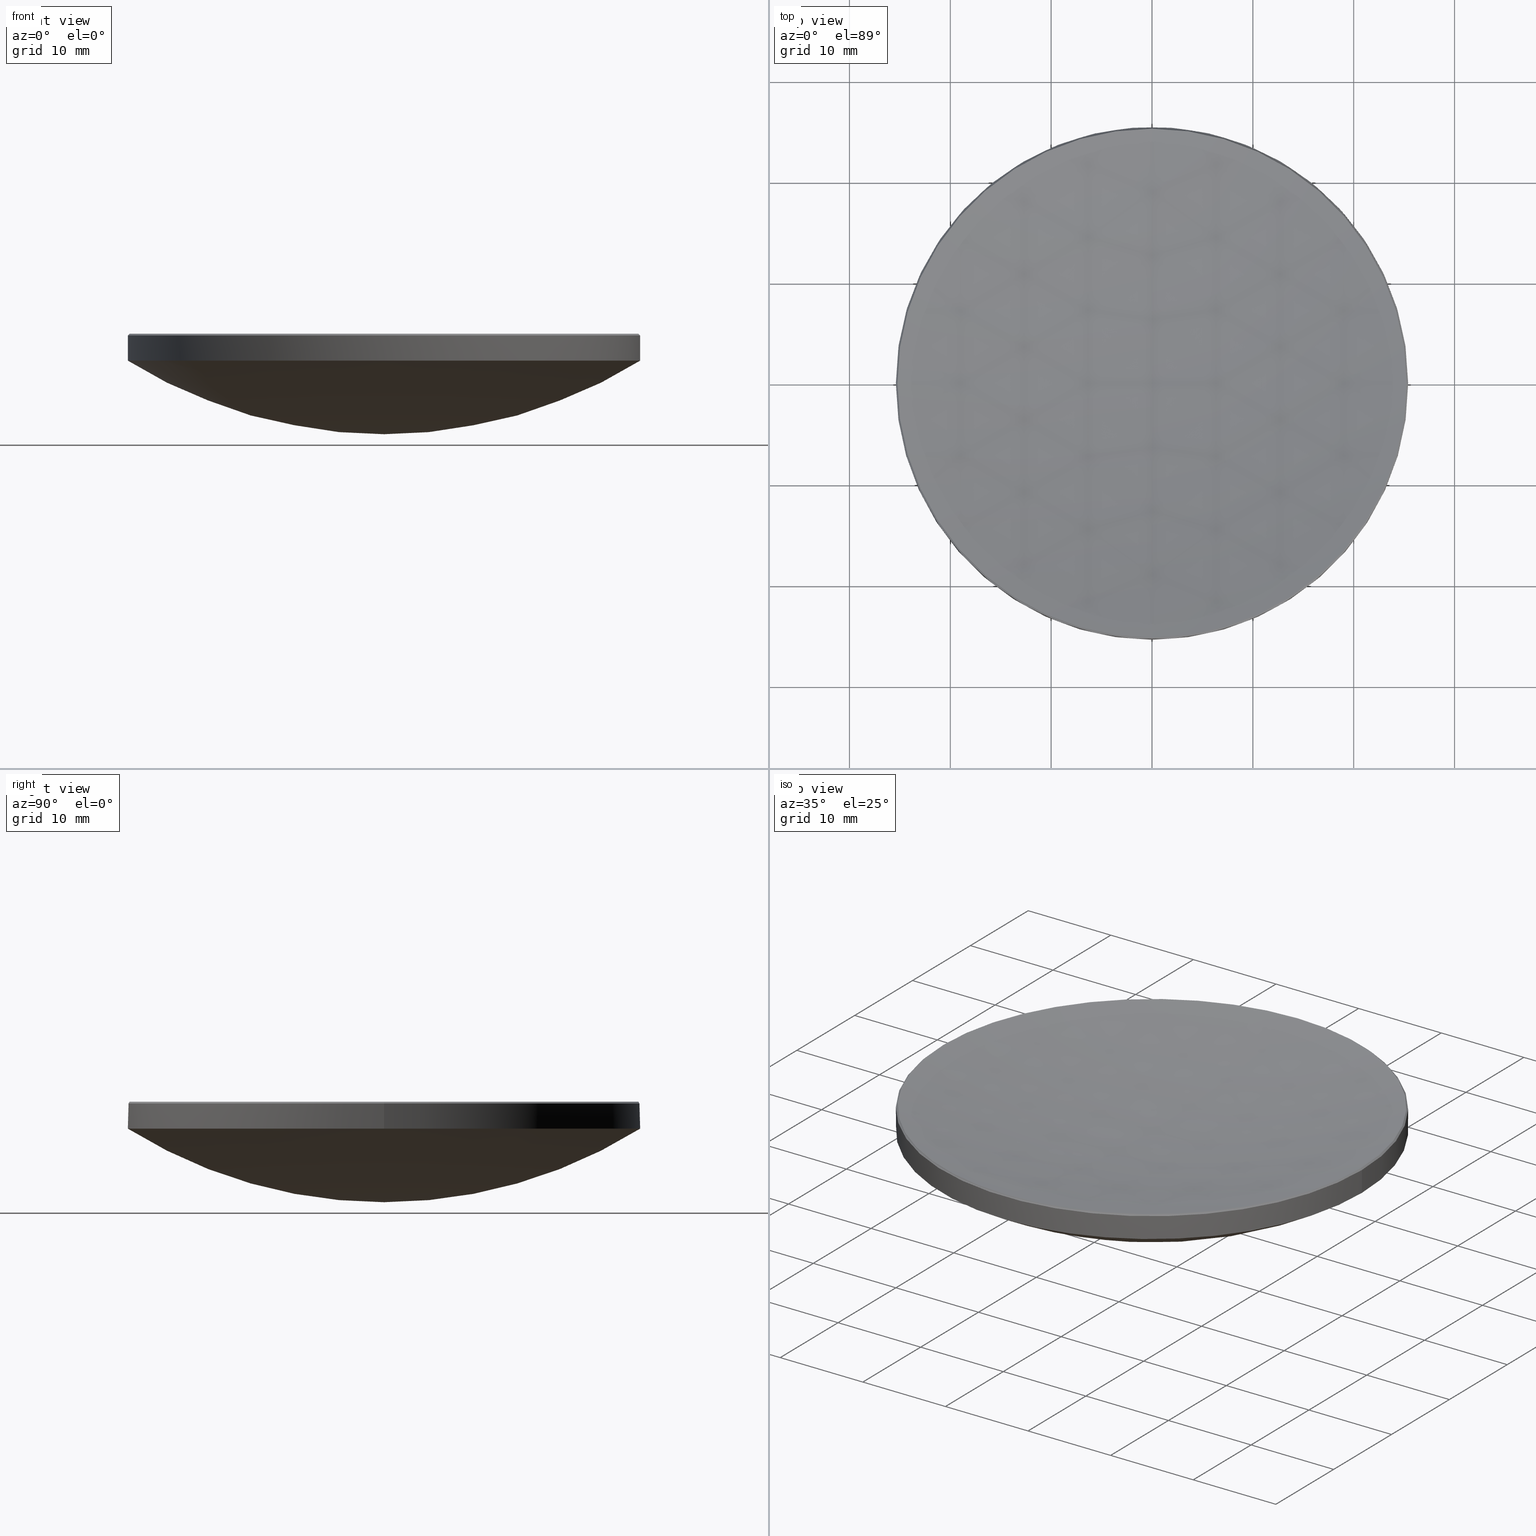
[diagram: canonical four-view strip — front | top / right | iso, engineering-drawing reading convention]
A machine part, canonical four-view strip (front | top / right | iso — engineering-drawing reading convention). The complete STEP part file that produces these views, byte-faithful:
ISO-10303-21;
HEADER;
FILE_DESCRIPTION (( 'STEP AP214' ),
    '1' );
FILE_NAME ('GLM1-050B-150-NIR.STEP',
    '2024-08-09T02:23:32',
    ( 'Windows User' ),
    ( 'P R C' ),
    'SwSTEP 2.0',
    'SolidWorks 2022',
    '' );
FILE_SCHEMA (( 'AUTOMOTIVE_DESIGN' ));
ENDSEC;

DATA;
#1 = PRODUCT_RELATED_PRODUCT_CATEGORY ( 'part', '', ( #240 ) ) ;
#2 = CONICAL_SURFACE ( 'NONE', #35, 25.23567881563414872, 0.7853981633974062015 ) ;
#3 = EDGE_CURVE ( 'NONE', #159, #162, #164, .T. ) ;
#4 = VERTEX_POINT ( 'NONE', #271 ) ;
#5 = ORIENTED_EDGE ( 'NONE', *, *, #136, .F. ) ;
#6 = DIRECTION ( 'NONE',  ( -1.224646799147353207E-16, -1.000000000000000000, 0.000000000000000000 ) ) ;
#7 = CARTESIAN_POINT ( 'NONE',  ( 0.000000000000000000, 0.000000000000000000, 15.49999999999997158 ) ) ;
#8 = ORIENTED_EDGE ( 'NONE', *, *, #85, .T. ) ;
#9 = SPHERICAL_SURFACE ( 'NONE', #123, 47.86999999999999744 ) ;
#10 = CIRCLE ( 'NONE', #205, 25.23567881563414517 ) ;
#11 = ORIENTED_EDGE ( 'NONE', *, *, #257, .T. ) ;
#12 = DIRECTION ( 'NONE',  ( -0.000000000000000000, -0.000000000000000000, 1.000000000000000000 ) ) ;
#13 = SURFACE_STYLE_FILL_AREA ( #101 ) ;
#14 = CIRCLE ( 'NONE', #282, 25.39999999999999858 ) ;
#15 = FILL_AREA_STYLE ('',( #109 ) ) ;
#16 = EDGE_CURVE ( 'NONE', #70, #272, #153, .T. ) ;
#17 = SURFACE_SIDE_STYLE ('',( #213 ) ) ;
#18 = APPLICATION_PROTOCOL_DEFINITION ( 'draft international standard', 'automotive_design', 1998, #256 ) ;
#19 = CARTESIAN_POINT ( 'NONE',  ( 0.000000000000000000, 0.000000000000000000, 20.00000000000000000 ) ) ;
#20 = CIRCLE ( 'NONE', #178, 47.86999999999999744 ) ;
#21 = CARTESIAN_POINT ( 'NONE',  ( 25.39999999999999503, 3.110602869834276471E-15, 13.00000000000000000 ) ) ;
#22 = DIRECTION ( 'NONE',  ( 1.000000000000000000, 0.000000000000000000, 0.000000000000000000 ) ) ;
#23 = AXIS2_PLACEMENT_3D ( 'NONE', #197, #134, #281 ) ;
#24 = EDGE_CURVE ( 'NONE', #4, #162, #217, .T. ) ;
#25 = MANIFOLD_SOLID_BREP ( '����1', #163 ) ;
#26 = ORIENTED_EDGE ( 'NONE', *, *, #221, .F. ) ;
#27 = EDGE_LOOP ( 'NONE', ( #32, #268, #200, #92 ) ) ;
#28 = DIRECTION ( 'NONE',  ( -1.000000000000000000, 1.224646799147353207E-16, 0.000000000000000000 ) ) ;
#29 = ORIENTED_EDGE ( 'NONE', *, *, #175, .T. ) ;
#30 = CARTESIAN_POINT ( 'NONE',  ( 0.000000000000000000, 0.000000000000000000, 53.57557023628872628 ) ) ;
#31 = DIRECTION ( 'NONE',  ( -0.000000000000000000, -0.000000000000000000, 1.000000000000000000 ) ) ;
#32 = ORIENTED_EDGE ( 'NONE', *, *, #237, .F. ) ;
#33 = DIRECTION ( 'NONE',  ( -1.224646799147353207E-16, -1.000000000000000000, 0.000000000000000000 ) ) ;
#34 = DIRECTION ( 'NONE',  ( 1.000000000000000000, 0.000000000000000000, 0.000000000000000000 ) ) ;
#35 = AXIS2_PLACEMENT_3D ( 'NONE', #37, #182, #203 ) ;
#36 = ORIENTED_EDGE ( 'NONE', *, *, #191, .F. ) ;
#37 = CARTESIAN_POINT ( 'NONE',  ( 0.000000000000000000, 0.000000000000000000, 15.66432118436583742 ) ) ;
#38 =( NAMED_UNIT ( * ) SI_UNIT ( $, .STERADIAN. ) SOLID_ANGLE_UNIT ( ) );
#39 = ADVANCED_FACE ( 'NONE', ( #108 ), #106, .T. ) ;
#40 = DIRECTION ( 'NONE',  ( 1.000000000000000000, 0.000000000000000000, 0.000000000000000000 ) ) ;
#41 = SURFACE_STYLE_USAGE ( .BOTH. , #17 ) ;
#42 = EDGE_CURVE ( 'NONE', #160, #138, #260, .T. ) ;
#43 = DIRECTION ( 'NONE',  ( 1.000000000000000000, 0.000000000000000000, 0.000000000000000000 ) ) ;
#44 = LINE ( 'NONE', #170, #230 ) ;
#45 = CIRCLE ( 'NONE', #147, 25.23567881563414517 ) ;
#46 = DIRECTION ( 'NONE',  ( 0.000000000000000000, 0.000000000000000000, -1.000000000000000000 ) ) ;
#47 = ADVANCED_FACE ( 'NONE', ( #207 ), #171, .T. ) ;
#48 = DIRECTION ( 'NONE',  ( -1.000000000000000000, 0.000000000000000000, 0.000000000000000000 ) ) ;
#49 = EDGE_CURVE ( 'NONE', #162, #4, #14, .T. ) ;
#50 = AXIS2_PLACEMENT_3D ( 'NONE', #7, #246, #209 ) ;
#51 = ORIENTED_EDGE ( 'NONE', *, *, #3, .T. ) ;
#52 = EDGE_LOOP ( 'NONE', ( #26, #116, #36, #5 ) ) ;
#53 =( NAMED_UNIT ( * ) PLANE_ANGLE_UNIT ( ) SI_UNIT ( $, .RADIAN. ) );
#54 = ORIENTED_EDGE ( 'NONE', *, *, #24, .T. ) ;
#55 = ORIENTED_EDGE ( 'NONE', *, *, #151, .T. ) ;
#56 = CARTESIAN_POINT ( 'NONE',  ( 0.000000000000000000, 0.000000000000000000, 13.00000000000000000 ) ) ;
#57 = ORIENTED_EDGE ( 'NONE', *, *, #191, .T. ) ;
#58 = PRODUCT_DEFINITION ( 'δ֪', '', #280, #261 ) ;
#59 = DIRECTION ( 'NONE',  ( 1.000000000000000000, 0.000000000000000000, 0.000000000000000000 ) ) ;
#60 = CARTESIAN_POINT ( 'NONE',  ( 0.000000000000000000, 0.000000000000000000, 13.00000000000000000 ) ) ;
#61 = DIRECTION ( 'NONE',  ( -0.000000000000000000, -0.000000000000000000, -1.000000000000000000 ) ) ;
#62 = FACE_OUTER_BOUND ( 'NONE', #229, .T. ) ;
#63 =( NAMED_UNIT ( * ) SI_UNIT ( $, .STERADIAN. ) SOLID_ANGLE_UNIT ( ) );
#64 = DIRECTION ( 'NONE',  ( -1.000000000000000000, 0.000000000000000000, 0.000000000000000000 ) ) ;
#65 = AXIS2_PLACEMENT_3D ( 'NONE', #192, #81, #148 ) ;
#66 = CARTESIAN_POINT ( 'NONE',  ( 0.000000000000000000, 7.306242803713110362E-15, 12.96517229905352941 ) ) ;
#67 = AXIS2_PLACEMENT_3D ( 'NONE', #144, #227, #33 ) ;
#68 = EDGE_CURVE ( 'NONE', #222, #202, #179, .T. ) ;
#69 = DIRECTION ( 'NONE',  ( -0.000000000000000000, -0.000000000000000000, 1.000000000000000000 ) ) ;
#70 = VERTEX_POINT ( 'NONE', #215 ) ;
#71 = ORIENTED_EDGE ( 'NONE', *, *, #236, .F. ) ;
#72 = DIRECTION ( 'NONE',  ( 1.000000000000000000, 0.000000000000000000, 0.000000000000000000 ) ) ;
#73 = ORIENTED_EDGE ( 'NONE', *, *, #137, .T. ) ;
#74 = DIRECTION ( 'NONE',  ( 0.000000000000000000, 1.000000000000000000, 0.000000000000000000 ) ) ;
#75 = LINE ( 'NONE', #117, #115 ) ;
#76 = PRESENTATION_LAYER_ASSIGNMENT (  '', '', ( #273 ) ) ;
#77 = ORIENTED_EDGE ( 'NONE', *, *, #151, .F. ) ;
#78 = SPHERICAL_SURFACE ( 'NONE', #242, 119.3200000000000074 ) ;
#79 = DIRECTION ( 'NONE',  ( -1.000000000000000000, 0.000000000000000000, 0.000000000000000000 ) ) ;
#80 =( GEOMETRIC_REPRESENTATION_CONTEXT ( 3 ) GLOBAL_UNCERTAINTY_ASSIGNED_CONTEXT ( ( #169 ) ) GLOBAL_UNIT_ASSIGNED_CONTEXT ( ( #143, #53, #139 ) ) REPRESENTATION_CONTEXT ( 'NONE', 'WORKASPACE' ) );
#81 = DIRECTION ( 'NONE',  ( -1.000000000000000000, 0.000000000000000000, 0.000000000000000000 ) ) ;
#82 = CIRCLE ( 'NONE', #278, 25.39999999999999503 ) ;
#83 = UNCERTAINTY_MEASURE_WITH_UNIT (LENGTH_MEASURE( 1.000000000000000082E-05 ), #120, 'distance_accuracy_value', 'NONE');
#84 = AXIS2_PLACEMENT_3D ( 'NONE', #56, #31, #34 ) ;
#85 = EDGE_CURVE ( 'NONE', #202, #138, #10, .T. ) ;
#86 = CARTESIAN_POINT ( 'NONE',  ( 0.000000000000000000, 0.000000000000000000, 15.66432118436585164 ) ) ;
#87 = PRESENTATION_LAYER_ASSIGNMENT (  '', '', ( #135 ) ) ;
#88 = CARTESIAN_POINT ( 'NONE',  ( -3.090479328587706859E-15, -25.23567881563418425, 15.66432118436585164 ) ) ;
#89 =( GEOMETRIC_REPRESENTATION_CONTEXT ( 3 ) GLOBAL_UNCERTAINTY_ASSIGNED_CONTEXT ( ( #83 ) ) GLOBAL_UNIT_ASSIGNED_CONTEXT ( ( #120, #166, #38 ) ) REPRESENTATION_CONTEXT ( 'NONE', 'WORKASPACE' ) );
#90 = LINE ( 'NONE', #111, #103 ) ;
#91 = ORIENTED_EDGE ( 'NONE', *, *, #68, .T. ) ;
#92 = ORIENTED_EDGE ( 'NONE', *, *, #16, .F. ) ;
#93 = FACE_OUTER_BOUND ( 'NONE', #188, .T. ) ;
#94 = VERTEX_POINT ( 'NONE', #21 ) ;
#95 = ADVANCED_FACE ( 'NONE', ( #62 ), #128, .F. ) ;
#96 = CARTESIAN_POINT ( 'NONE',  ( 0.000000000000000000, 0.000000000000000000, 15.66432118436585164 ) ) ;
#97 = PRESENTATION_STYLE_ASSIGNMENT (( #124 ) ) ;
#98 = ORIENTED_EDGE ( 'NONE', *, *, #175, .F. ) ;
#99 = DIRECTION ( 'NONE',  ( -0.000000000000000000, -0.000000000000000000, 1.000000000000000000 ) ) ;
#100 = AXIS2_PLACEMENT_3D ( 'NONE', #60, #232, #40 ) ;
#101 = FILL_AREA_STYLE ('',( #183 ) ) ;
#102 = AXIS2_PLACEMENT_3D ( 'NONE', #252, #127, #43 ) ;
#103 = VECTOR ( 'NONE', #177, 1000.000000000000114 ) ;
#104 = VERTEX_POINT ( 'NONE', #250 ) ;
#105 = CARTESIAN_POINT ( 'NONE',  ( 0.000000000000000000, 0.000000000000000000, 53.57557023628872628 ) ) ;
#106 = CYLINDRICAL_SURFACE ( 'NONE', #199, 25.39999999999999858 ) ;
#107 = DIRECTION ( 'NONE',  ( -0.000000000000000000, -0.000000000000000000, 1.000000000000000000 ) ) ;
#108 = FACE_OUTER_BOUND ( 'NONE', #264, .T. ) ;
#109 = FILL_AREA_STYLE_COLOUR ( '', #233 ) ;
#110 = AXIS2_PLACEMENT_3D ( 'NONE', #187, #107, #59 ) ;
#111 = CARTESIAN_POINT ( 'NONE',  ( -25.23567881563414872, 0.000000000000000000, 15.66432118436583742 ) ) ;
#112 = VECTOR ( 'NONE', #145, 1000.000000000000114 ) ;
#113 = EDGE_CURVE ( 'NONE', #272, #104, #216, .T. ) ;
#114 = ORIENTED_EDGE ( 'NONE', *, *, #265, .F. ) ;
#115 = VECTOR ( 'NONE', #231, 1000.000000000000000 ) ;
#116 = ORIENTED_EDGE ( 'NONE', *, *, #237, .T. ) ;
#117 = CARTESIAN_POINT ( 'NONE',  ( 25.39999999999999858, 3.110602869834276865E-15, 20.00000000000000000 ) ) ;
#118 = ORIENTED_EDGE ( 'NONE', *, *, #236, .T. ) ;
#119 = DIRECTION ( 'NONE',  ( 0.000000000000000000, 0.000000000000000000, -1.000000000000000000 ) ) ;
#120 =( LENGTH_UNIT ( ) NAMED_UNIT ( * ) SI_UNIT ( .MILLI., .METRE. ) );
#121 = VERTEX_POINT ( 'NONE', #126 ) ;
#122 = DIRECTION ( 'NONE',  ( -1.000000000000000000, 0.000000000000000000, 0.000000000000000000 ) ) ;
#123 = AXIS2_PLACEMENT_3D ( 'NONE', #249, #122, #161 ) ;
#124 = SURFACE_STYLE_USAGE ( .BOTH. , #228 ) ;
#125 = CARTESIAN_POINT ( 'NONE',  ( -25.39999999999999503, 0.000000000000000000, 13.00000000000000000 ) ) ;
#126 = CARTESIAN_POINT ( 'NONE',  ( 0.000000000000000000, 2.931192113759189857E-15, 5.705570236288731500 ) ) ;
#127 = DIRECTION ( 'NONE',  ( 0.000000000000000000, 0.000000000000000000, 1.000000000000000000 ) ) ;
#128 = SPHERICAL_SURFACE ( 'NONE', #65, 119.3200000000000074 ) ;
#129 =( GEOMETRIC_REPRESENTATION_CONTEXT ( 3 ) GLOBAL_UNCERTAINTY_ASSIGNED_CONTEXT ( ( #168 ) ) GLOBAL_UNIT_ASSIGNED_CONTEXT ( ( #276, #254, #63 ) ) REPRESENTATION_CONTEXT ( 'NONE', 'WORKASPACE' ) );
#130 = AXIS2_PLACEMENT_3D ( 'NONE', #262, #46, #48 ) ;
#131 = AXIS2_PLACEMENT_3D ( 'NONE', #105, #190, #74 ) ;
#132 = DIRECTION ( 'NONE',  ( 1.000000000000000000, 0.000000000000000000, 0.000000000000000000 ) ) ;
#133 = DIRECTION ( 'NONE',  ( 1.000000000000000000, 0.000000000000000000, 0.000000000000000000 ) ) ;
#134 = DIRECTION ( 'NONE',  ( 1.000000000000000000, 0.000000000000000000, 0.000000000000000000 ) ) ;
#135 = STYLED_ITEM ( 'NONE', ( #149 ), #173 ) ;
#136 = EDGE_CURVE ( 'NONE', #104, #94, #82, .T. ) ;
#137 = EDGE_CURVE ( 'NONE', #160, #222, #196, .T. ) ;
#138 = VERTEX_POINT ( 'NONE', #88 ) ;
#139 =( NAMED_UNIT ( * ) SI_UNIT ( $, .STERADIAN. ) SOLID_ANGLE_UNIT ( ) );
#140 = ORIENTED_EDGE ( 'NONE', *, *, #3, .F. ) ;
#141 = FACE_OUTER_BOUND ( 'NONE', #247, .T. ) ;
#142 = ORIENTED_EDGE ( 'NONE', *, *, #257, .F. ) ;
#143 =( LENGTH_UNIT ( ) NAMED_UNIT ( * ) SI_UNIT ( .MILLI., .METRE. ) );
#144 = CARTESIAN_POINT ( 'NONE',  ( 0.000000000000000000, 0.000000000000000000, 132.2851722990535279 ) ) ;
#145 = DIRECTION ( 'NONE',  ( 0.7071067811865177077, 8.659560562354566777E-17, -0.7071067811865773267 ) ) ;
#146 = EDGE_LOOP ( 'NONE', ( #54, #219, #57, #184, #98 ) ) ;
#147 = AXIS2_PLACEMENT_3D ( 'NONE', #96, #12, #270 ) ;
#148 = DIRECTION ( 'NONE',  ( 0.000000000000000000, 1.000000000000000000, 0.000000000000000000 ) ) ;
#149 = PRESENTATION_STYLE_ASSIGNMENT (( #41 ) ) ;
#150 = DIRECTION ( 'NONE',  ( -1.000000000000000000, 0.000000000000000000, 0.000000000000000000 ) ) ;
#151 = EDGE_CURVE ( 'NONE', #202, #4, #90, .T. ) ;
#152 = FACE_OUTER_BOUND ( 'NONE', #146, .T. ) ;
#153 = CIRCLE ( 'NONE', #84, 25.39999999999999503 ) ;
#154 = DIRECTION ( 'NONE',  ( 1.000000000000000000, 0.000000000000000000, 0.000000000000000000 ) ) ;
#155 = CARTESIAN_POINT ( 'NONE',  ( 0.000000000000000000, 0.000000000000000000, 15.49999999999997158 ) ) ;
#156 = CARTESIAN_POINT ( 'NONE',  ( 0.000000000000000000, 0.000000000000000000, 13.00000000000000000 ) ) ;
#157 = APPLICATION_CONTEXT ( 'automotive_design' ) ;
#158 = ORIENTED_EDGE ( 'NONE', *, *, #85, .F. ) ;
#159 = VERTEX_POINT ( 'NONE', #258 ) ;
#160 = VERTEX_POINT ( 'NONE', #66 ) ;
#161 = DIRECTION ( 'NONE',  ( 0.000000000000000000, 1.000000000000000000, 0.000000000000000000 ) ) ;
#162 = VERTEX_POINT ( 'NONE', #235 ) ;
#163 = CLOSED_SHELL ( 'NONE', ( #267, #226, #195, #176, #39, #95, #208, #47 ) ) ;
#164 = LINE ( 'NONE', #224, #112 ) ;
#165 = DIRECTION ( 'NONE',  ( 0.000000000000000000, 1.000000000000000000, 0.000000000000000000 ) ) ;
#166 =( NAMED_UNIT ( * ) PLANE_ANGLE_UNIT ( ) SI_UNIT ( $, .RADIAN. ) );
#167 = CIRCLE ( 'NONE', #263, 47.86999999999999744 ) ;
#168 = UNCERTAINTY_MEASURE_WITH_UNIT (LENGTH_MEASURE( 1.000000000000000082E-05 ), #276, 'distance_accuracy_value', 'NONE');
#169 = UNCERTAINTY_MEASURE_WITH_UNIT (LENGTH_MEASURE( 1.000000000000000082E-05 ), #143, 'distance_accuracy_value', 'NONE');
#170 = CARTESIAN_POINT ( 'NONE',  ( -25.39999999999999858, 0.000000000000000000, 20.00000000000000000 ) ) ;
#171 = CONICAL_SURFACE ( 'NONE', #130, 25.23567881563414872, 0.7853981633974062015 ) ;
#172 = CARTESIAN_POINT ( 'NONE',  ( 0.000000000000000000, 0.000000000000000000, 15.66432118436585164 ) ) ;
#173 = ADVANCED_BREP_SHAPE_REPRESENTATION ( 'GLM1-050B-150-NIR', ( #25, #102 ), #80 ) ;
#174 = MECHANICAL_DESIGN_GEOMETRIC_PRESENTATION_REPRESENTATION (  '', ( #135 ), #129 ) ;
#175 = EDGE_CURVE ( 'NONE', #4, #272, #44, .T. ) ;
#176 = ADVANCED_FACE ( 'NONE', ( #152 ), #234, .T. ) ;
#177 = DIRECTION ( 'NONE',  ( -0.7071067811865177077, 0.000000000000000000, -0.7071067811865773267 ) ) ;
#178 = AXIS2_PLACEMENT_3D ( 'NONE', #30, #275, #119 ) ;
#179 = CIRCLE ( 'NONE', #185, 25.23567881563414517 ) ;
#180 = ORIENTED_EDGE ( 'NONE', *, *, #136, .T. ) ;
#181 = ORIENTED_EDGE ( 'NONE', *, *, #49, .F. ) ;
#182 = DIRECTION ( 'NONE',  ( 0.000000000000000000, 0.000000000000000000, -1.000000000000000000 ) ) ;
#183 = FILL_AREA_STYLE_COLOUR ( '', #212 ) ;
#184 = ORIENTED_EDGE ( 'NONE', *, *, #16, .T. ) ;
#185 = AXIS2_PLACEMENT_3D ( 'NONE', #86, #239, #132 ) ;
#186 = CARTESIAN_POINT ( 'NONE',  ( -25.23567881563414872, 0.000000000000000000, 15.66432118436585164 ) ) ;
#187 = CARTESIAN_POINT ( 'NONE',  ( 0.000000000000000000, 0.000000000000000000, 13.00000000000000000 ) ) ;
#188 = EDGE_LOOP ( 'NONE', ( #210, #243, #118, #11 ) ) ;
#189 = MECHANICAL_DESIGN_GEOMETRIC_PRESENTATION_REPRESENTATION (  '', ( #273 ), #89 ) ;
#190 = DIRECTION ( 'NONE',  ( -1.000000000000000000, 0.000000000000000000, 0.000000000000000000 ) ) ;
#191 = EDGE_CURVE ( 'NONE', #94, #70, #277, .T. ) ;
#192 = CARTESIAN_POINT ( 'NONE',  ( 0.000000000000000000, 0.000000000000000000, 132.2851722990535279 ) ) ;
#193 = PRODUCT_CONTEXT ( 'NONE', #256, 'mechanical' ) ;
#194 = DIRECTION ( 'NONE',  ( 0.000000000000000000, 0.000000000000000000, -1.000000000000000000 ) ) ;
#195 = ADVANCED_FACE ( 'NONE', ( #93 ), #78, .F. ) ;
#196 = CIRCLE ( 'NONE', #23, 119.3200000000000074 ) ;
#197 = CARTESIAN_POINT ( 'NONE',  ( 0.000000000000000000, 0.000000000000000000, 132.2851722990535279 ) ) ;
#198 = PRODUCT_DEFINITION_SHAPE ( 'NONE', 'NONE',  #58 ) ;
#199 = AXIS2_PLACEMENT_3D ( 'NONE', #253, #61, #150 ) ;
#200 = ORIENTED_EDGE ( 'NONE', *, *, #113, .F. ) ;
#201 = AXIS2_PLACEMENT_3D ( 'NONE', #19, #279, #64 ) ;
#202 = VERTEX_POINT ( 'NONE', #186 ) ;
#203 = DIRECTION ( 'NONE',  ( -1.000000000000000000, 0.000000000000000000, 0.000000000000000000 ) ) ;
#204 = CARTESIAN_POINT ( 'NONE',  ( 0.000000000000000000, 0.000000000000000000, 15.66432118436585164 ) ) ;
#205 = AXIS2_PLACEMENT_3D ( 'NONE', #172, #69, #133 ) ;
#206 = CARTESIAN_POINT ( 'NONE',  ( 0.000000000000000000, 25.23567881563418425, 15.66432118436585164 ) ) ;
#207 = FACE_OUTER_BOUND ( 'NONE', #225, .T. ) ;
#208 = ADVANCED_FACE ( 'NONE', ( #274 ), #9, .T. ) ;
#209 = DIRECTION ( 'NONE',  ( 1.000000000000000000, 0.000000000000000000, 0.000000000000000000 ) ) ;
#210 = ORIENTED_EDGE ( 'NONE', *, *, #137, .F. ) ;
#211 = CARTESIAN_POINT ( 'NONE',  ( 0.000000000000000000, 0.000000000000000000, 132.2851722990535279 ) ) ;
#212 = COLOUR_RGB ( '',1.000000000000000000, 1.000000000000000000, 1.000000000000000000 ) ;
#213 = SURFACE_STYLE_FILL_AREA ( #15 ) ;
#214 = SHAPE_DEFINITION_REPRESENTATION ( #198, #173 ) ;
#215 = CARTESIAN_POINT ( 'NONE',  ( 0.000000000000000000, 25.39999999999999858, 12.99999999999999822 ) ) ;
#216 = CIRCLE ( 'NONE', #100, 25.39999999999999503 ) ;
#217 = CIRCLE ( 'NONE', #50, 25.39999999999999858 ) ;
#218 = ORIENTED_EDGE ( 'NONE', *, *, #113, .T. ) ;
#219 = ORIENTED_EDGE ( 'NONE', *, *, #265, .T. ) ;
#220 = SPHERICAL_SURFACE ( 'NONE', #131, 47.86999999999999744 ) ;
#221 = EDGE_CURVE ( 'NONE', #121, #104, #167, .T. ) ;
#222 = VERTEX_POINT ( 'NONE', #206 ) ;
#223 = FACE_OUTER_BOUND ( 'NONE', #27, .T. ) ;
#224 = CARTESIAN_POINT ( 'NONE',  ( 25.23567881563414872, 3.090479328587702520E-15, 15.66432118436583742 ) ) ;
#225 = EDGE_LOOP ( 'NONE', ( #140, #71, #158, #55, #181 ) ) ;
#226 = ADVANCED_FACE ( 'NONE', ( #223 ), #220, .T. ) ;
#227 = DIRECTION ( 'NONE',  ( -1.000000000000000000, 1.224646799147353207E-16, 0.000000000000000000 ) ) ;
#228 = SURFACE_SIDE_STYLE ('',( #13 ) ) ;
#229 = EDGE_LOOP ( 'NONE', ( #269, #73, #91, #8 ) ) ;
#230 = VECTOR ( 'NONE', #259, 1000.000000000000000 ) ;
#231 = DIRECTION ( 'NONE',  ( -0.000000000000000000, -0.000000000000000000, -1.000000000000000000 ) ) ;
#232 = DIRECTION ( 'NONE',  ( -0.000000000000000000, -0.000000000000000000, 1.000000000000000000 ) ) ;
#233 = COLOUR_RGB ( '',1.000000000000000000, 1.000000000000000000, 1.000000000000000000 ) ;
#234 = CYLINDRICAL_SURFACE ( 'NONE', #201, 25.39999999999999858 ) ;
#235 = CARTESIAN_POINT ( 'NONE',  ( 25.39999999999999858, 3.110602869834276865E-15, 15.49999999999997158 ) ) ;
#236 = EDGE_CURVE ( 'NONE', #138, #159, #45, .T. ) ;
#237 = EDGE_CURVE ( 'NONE', #121, #70, #20, .T. ) ;
#238 = CIRCLE ( 'NONE', #251, 25.23567881563414517 ) ;
#239 = DIRECTION ( 'NONE',  ( -0.000000000000000000, -0.000000000000000000, 1.000000000000000000 ) ) ;
#240 = PRODUCT ( 'GLM1-050B-150-NIR', 'GLM1-050B-150-NIR', '', ( #193 ) ) ;
#241 = DIRECTION ( 'NONE',  ( -0.000000000000000000, -0.000000000000000000, 1.000000000000000000 ) ) ;
#242 = AXIS2_PLACEMENT_3D ( 'NONE', #211, #79, #165 ) ;
#243 = ORIENTED_EDGE ( 'NONE', *, *, #42, .T. ) ;
#244 = CARTESIAN_POINT ( 'NONE',  ( 0.000000000000000000, 0.000000000000000000, 53.57557023628872628 ) ) ;
#245 = ORIENTED_EDGE ( 'NONE', *, *, #24, .F. ) ;
#246 = DIRECTION ( 'NONE',  ( 0.000000000000000000, 0.000000000000000000, -1.000000000000000000 ) ) ;
#247 = EDGE_LOOP ( 'NONE', ( #142, #51, #245, #77, #266 ) ) ;
#248 = ORIENTED_EDGE ( 'NONE', *, *, #49, .T. ) ;
#249 = CARTESIAN_POINT ( 'NONE',  ( 0.000000000000000000, 0.000000000000000000, 53.57557023628872628 ) ) ;
#250 = CARTESIAN_POINT ( 'NONE',  ( -3.110602869834276865E-15, -25.39999999999999858, 12.99999999999999822 ) ) ;
#251 = AXIS2_PLACEMENT_3D ( 'NONE', #204, #99, #72 ) ;
#252 = CARTESIAN_POINT ( 'NONE',  ( 0.000000000000000000, 0.000000000000000000, 0.000000000000000000 ) ) ;
#253 = CARTESIAN_POINT ( 'NONE',  ( 0.000000000000000000, 0.000000000000000000, 20.00000000000000000 ) ) ;
#254 =( NAMED_UNIT ( * ) PLANE_ANGLE_UNIT ( ) SI_UNIT ( $, .RADIAN. ) );
#255 = APPLICATION_PROTOCOL_DEFINITION ( 'draft international standard', 'automotive_design', 1998, #157 ) ;
#256 = APPLICATION_CONTEXT ( 'automotive_design' ) ;
#257 = EDGE_CURVE ( 'NONE', #159, #222, #238, .T. ) ;
#258 = CARTESIAN_POINT ( 'NONE',  ( 25.23567881563414872, 3.100541099210989890E-15, 15.66432118436585164 ) ) ;
#259 = DIRECTION ( 'NONE',  ( -0.000000000000000000, -0.000000000000000000, -1.000000000000000000 ) ) ;
#260 = CIRCLE ( 'NONE', #67, 119.3200000000000074 ) ;
#261 = PRODUCT_DEFINITION_CONTEXT ( 'detailed design', #157, 'design' ) ;
#262 = CARTESIAN_POINT ( 'NONE',  ( 0.000000000000000000, 0.000000000000000000, 15.66432118436583742 ) ) ;
#263 = AXIS2_PLACEMENT_3D ( 'NONE', #244, #28, #6 ) ;
#264 = EDGE_LOOP ( 'NONE', ( #114, #248, #29, #218, #180 ) ) ;
#265 = EDGE_CURVE ( 'NONE', #162, #94, #75, .T. ) ;
#266 = ORIENTED_EDGE ( 'NONE', *, *, #68, .F. ) ;
#267 = ADVANCED_FACE ( 'NONE', ( #141 ), #2, .T. ) ;
#268 = ORIENTED_EDGE ( 'NONE', *, *, #221, .T. ) ;
#269 = ORIENTED_EDGE ( 'NONE', *, *, #42, .F. ) ;
#270 = DIRECTION ( 'NONE',  ( 1.000000000000000000, 0.000000000000000000, 0.000000000000000000 ) ) ;
#271 = CARTESIAN_POINT ( 'NONE',  ( -25.39999999999999858, 0.000000000000000000, 15.49999999999997158 ) ) ;
#272 = VERTEX_POINT ( 'NONE', #125 ) ;
#273 = STYLED_ITEM ( 'NONE', ( #97 ), #25 ) ;
#274 = FACE_OUTER_BOUND ( 'NONE', #52, .T. ) ;
#275 = DIRECTION ( 'NONE',  ( 1.000000000000000000, -0.000000000000000000, 0.000000000000000000 ) ) ;
#276 =( LENGTH_UNIT ( ) NAMED_UNIT ( * ) SI_UNIT ( .MILLI., .METRE. ) );
#277 = CIRCLE ( 'NONE', #110, 25.39999999999999503 ) ;
#278 = AXIS2_PLACEMENT_3D ( 'NONE', #156, #241, #22 ) ;
#279 = DIRECTION ( 'NONE',  ( -0.000000000000000000, -0.000000000000000000, -1.000000000000000000 ) ) ;
#280 = PRODUCT_DEFINITION_FORMATION_WITH_SPECIFIED_SOURCE ( '�κ�', '', #240, .NOT_KNOWN. ) ;
#281 = DIRECTION ( 'NONE',  ( 0.000000000000000000, 0.000000000000000000, -1.000000000000000000 ) ) ;
#282 = AXIS2_PLACEMENT_3D ( 'NONE', #155, #194, #154 ) ;
ENDSEC;
END-ISO-10303-21;
